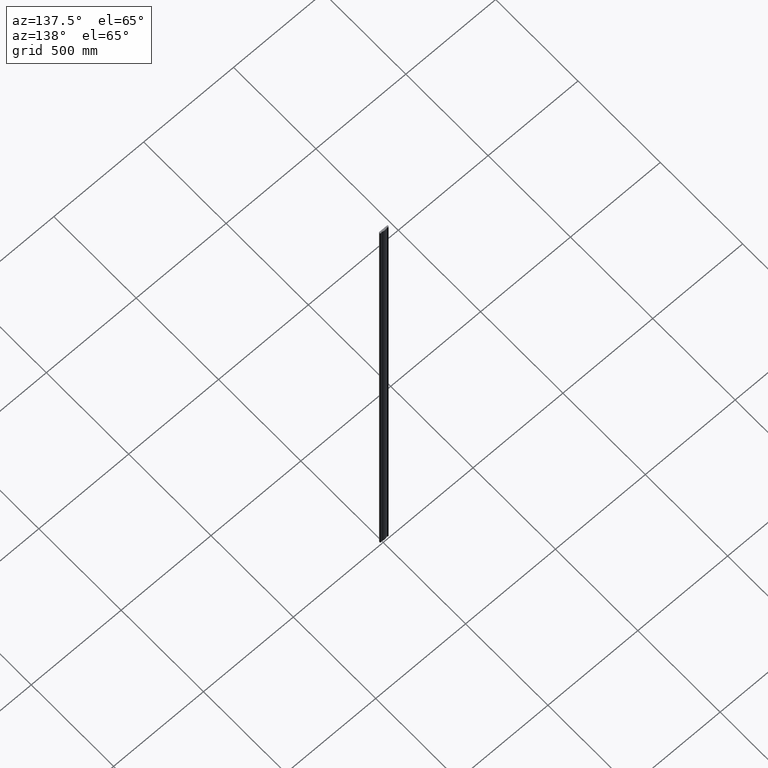
[diagram: clean part render]
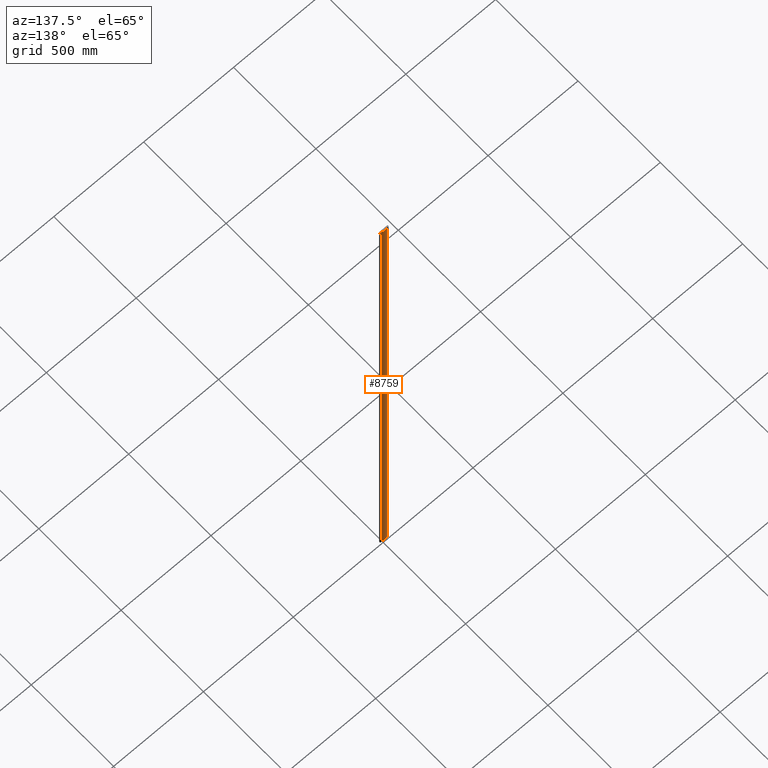
[diagram: same view with one face highlighted and labeled with its STEP entity id]
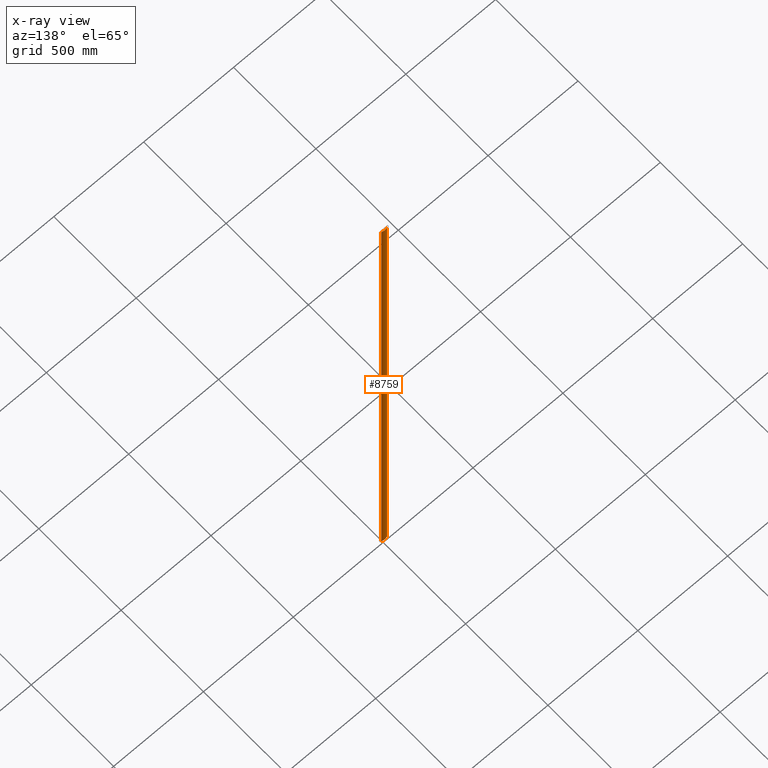
[diagram: x-ray of the same camera — body ghosted, the highlighted face saturated]
A machine part, auxiliary view. The second image highlights one B-rep face of the part: STEP entity #8759.
The next image is the same camera in x-ray: the body ghosted, the highlighted face saturated — about 0% of this face is hidden behind the body in this view.
In plain terms, the highlighted cylindrical surface (edge-blend (fillet) strip) has radius 40 mm, axis along (-0, -0, -1).
Its self-contained STEP definition (entity closure, byte-faithful):
#16 = DIRECTION ( 'NONE',  ( -0.000000000000000000, -0.000000000000000000, -1.000000000000000000 ) ) ;
#17 = DIRECTION ( 'NONE',  ( 0.000000000000000000, 0.000000000000000000, 1.000000000000000000 ) ) ;
#38 = CARTESIAN_POINT ( 'NONE',  ( 0.000000000000000000, -30.00000000000000355, -1500.000000000000000 ) ) ;
#301 = CYLINDRICAL_SURFACE ( 'NONE', #8757, 40.00000000000000000 ) ;
#653 = DIRECTION ( 'NONE',  ( -0.000000000000000000, -0.000000000000000000, -1.000000000000000000 ) ) ;
#853 = CARTESIAN_POINT ( 'NONE',  ( 15.81743912564300203, 6.739741690798235041, 1500.000000000000000 ) ) ;
#857 = VECTOR ( 'NONE', #16, 1000.000000000000000 ) ;
#1323 = CARTESIAN_POINT ( 'NONE',  ( -15.81743912564300558, 6.739741690798235041, 1500.000000000000000 ) ) ;
#1555 = DIRECTION ( 'NONE',  ( -1.000000000000000000, 0.000000000000000000, 0.000000000000000000 ) ) ;
#2300 = CARTESIAN_POINT ( 'NONE',  ( 0.000000000000000000, -30.00000000000000355, 1500.000000000000000 ) ) ;
#2324 = LINE ( 'NONE', #853, #857 ) ;
#2647 = FACE_OUTER_BOUND ( 'NONE', #6817, .T. ) ;
#2786 = VECTOR ( 'NONE', #7740, 1000.000000000000000 ) ;
#3046 = AXIS2_PLACEMENT_3D ( 'NONE', #38, #4759, #5670 ) ;
#3361 = CARTESIAN_POINT ( 'NONE',  ( 15.81743912564300203, 6.739741690798235041, 1500.000000000000000 ) ) ;
#3930 = EDGE_CURVE ( 'NONE', #8919, #8156, #2324, .T. ) ;
#4629 = CARTESIAN_POINT ( 'NONE',  ( -15.81743912564300558, 6.739741690798235041, 1500.000000000000000 ) ) ;
#4759 = DIRECTION ( 'NONE',  ( 0.000000000000000000, 0.000000000000000000, 1.000000000000000000 ) ) ;
#4773 = CARTESIAN_POINT ( 'NONE',  ( 0.000000000000000000, -30.00000000000000355, 1500.000000000000000 ) ) ;
#5173 = ORIENTED_EDGE ( 'NONE', *, *, #7385, .F. ) ;
#5271 = AXIS2_PLACEMENT_3D ( 'NONE', #4773, #17, #6452 ) ;
#5670 = DIRECTION ( 'NONE',  ( -1.000000000000000000, 0.000000000000000000, 0.000000000000000000 ) ) ;
#6452 = DIRECTION ( 'NONE',  ( -1.000000000000000000, 0.000000000000000000, 0.000000000000000000 ) ) ;
#6817 = EDGE_LOOP ( 'NONE', ( #10038, #5173, #7210, #7449 ) ) ;
#6976 = EDGE_CURVE ( 'NONE', #8156, #8934, #7765, .T. ) ;
#7210 = ORIENTED_EDGE ( 'NONE', *, *, #7504, .F. ) ;
#7385 = EDGE_CURVE ( 'NONE', #9806, #8934, #7910, .T. ) ;
#7449 = ORIENTED_EDGE ( 'NONE', *, *, #3930, .T. ) ;
#7504 = EDGE_CURVE ( 'NONE', #8919, #9806, #9126, .T. ) ;
#7740 = DIRECTION ( 'NONE',  ( -0.000000000000000000, -0.000000000000000000, -1.000000000000000000 ) ) ;
#7765 = CIRCLE ( 'NONE', #3046, 40.00000000000000000 ) ;
#7910 = LINE ( 'NONE', #4629, #2786 ) ;
#8156 = VERTEX_POINT ( 'NONE', #9298 ) ;
#8757 = AXIS2_PLACEMENT_3D ( 'NONE', #2300, #653, #1555 ) ;
#8759 = ADVANCED_FACE ( 'NONE', ( #2647 ), #301, .T. ) ;
#8919 = VERTEX_POINT ( 'NONE', #3361 ) ;
#8934 = VERTEX_POINT ( 'NONE', #9641 ) ;
#9126 = CIRCLE ( 'NONE', #5271, 40.00000000000000000 ) ;
#9298 = CARTESIAN_POINT ( 'NONE',  ( 15.81743912564300203, 6.739741690798235041, -1500.000000000000000 ) ) ;
#9641 = CARTESIAN_POINT ( 'NONE',  ( -15.81743912564300558, 6.739741690798235041, -1500.000000000000000 ) ) ;
#9806 = VERTEX_POINT ( 'NONE', #1323 ) ;
#10038 = ORIENTED_EDGE ( 'NONE', *, *, #6976, .T. ) ;